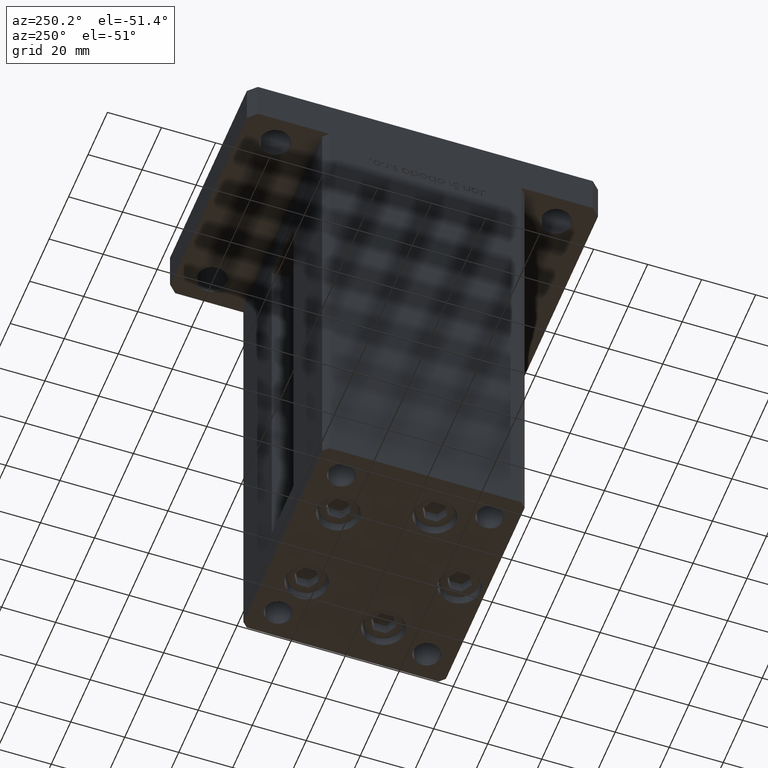
[diagram: clean part render]
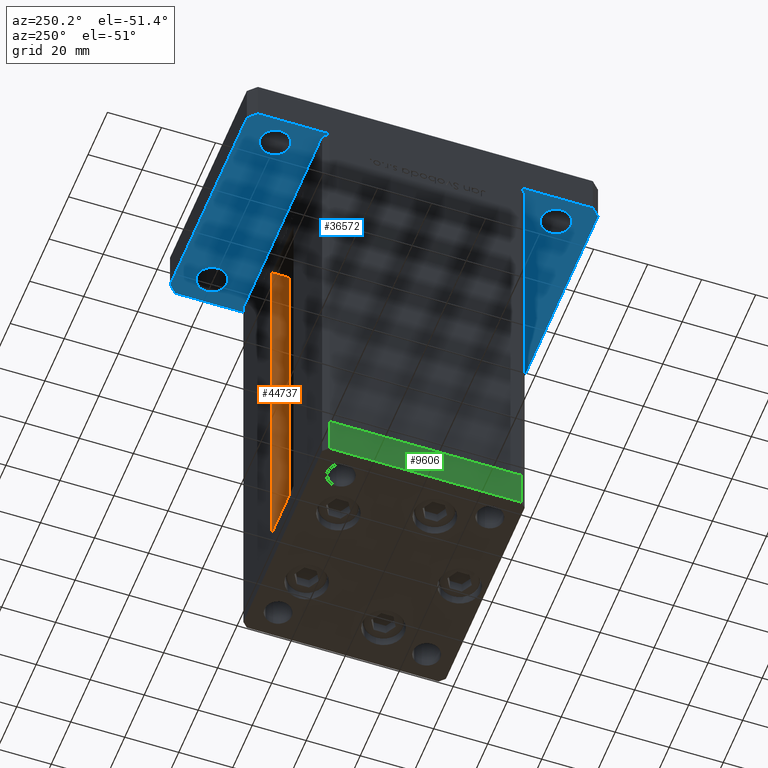
[diagram: same view with three faces highlighted in distinct colors, each labeled with its STEP entity id]
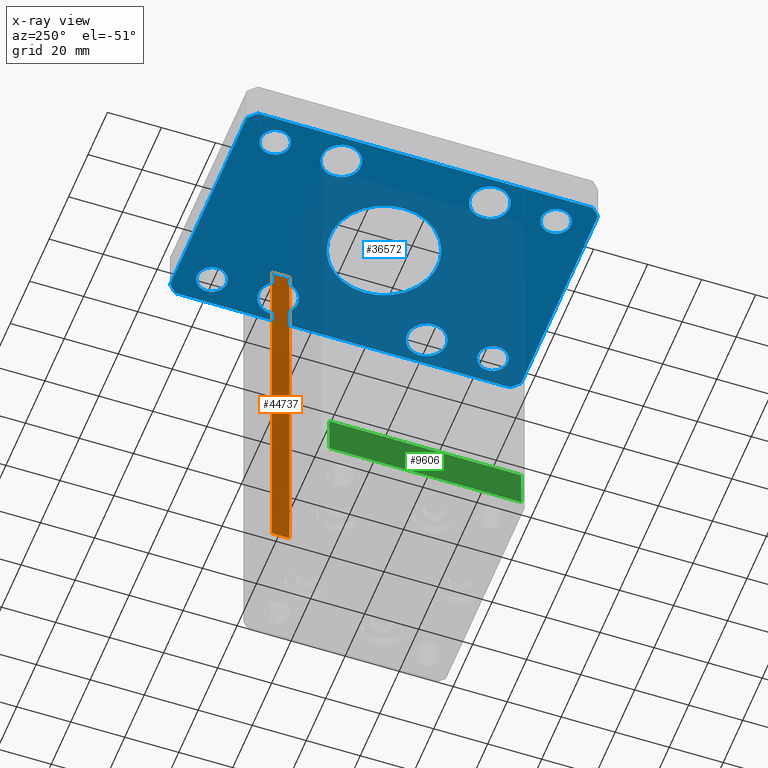
[diagram: x-ray of the same camera — body ghosted, the three highlighted faces saturated]
A machine part, auxiliary view with three faces highlighted in distinct colors.
The next image is the same camera in x-ray (body ghosted, the three faces saturated) — at least one of them is partly hidden behind the body in this view.
Their STEP definitions:

[orange] entity #44737 — the highlighted planar face has unit normal (1, 0, 0).
#1954 = CARTESIAN_POINT ( 'NONE',  ( 11.25000000000000000, 30.99999999999999289, 0.000000000000000000 ) ) ;
#2154 = CARTESIAN_POINT ( 'NONE',  ( 11.25000000000000000, 30.99999999999999289, 145.5000000000000000 ) ) ;
#4372 = DIRECTION ( 'NONE',  ( 1.000000000000000000, -0.000000000000000000, 0.000000000000000000 ) ) ;
#8063 = CARTESIAN_POINT ( 'NONE',  ( 11.25000000000000000, 0.000000000000000000, 145.5000000000000000 ) ) ;
#9899 = LINE ( 'NONE', #30776, #43610 ) ;
#12268 = VERTEX_POINT ( 'NONE', #46587 ) ;
#12788 = DIRECTION ( 'NONE',  ( 0.000000000000000000, 0.000000000000000000, -1.000000000000000000 ) ) ;
#13801 = ORIENTED_EDGE ( 'NONE', *, *, #40222, .F. ) ;
#15732 = AXIS2_PLACEMENT_3D ( 'NONE', #33125, #4372, #12788 ) ;
#16593 = PLANE ( 'NONE',  #15732 ) ;
#18782 = DIRECTION ( 'NONE',  ( 0.000000000000000000, 1.000000000000000000, 0.000000000000000000 ) ) ;
#24416 = CARTESIAN_POINT ( 'NONE',  ( 11.25000000000000000, 37.50000000000000000, 0.000000000000000000 ) ) ;
#24466 = VECTOR ( 'NONE', #18782, 1000.000000000000000 ) ;
#24974 = LINE ( 'NONE', #36885, #26901 ) ;
#26346 = CARTESIAN_POINT ( 'NONE',  ( 11.24999999999999289, 37.50000000000000000, 145.5000000000000000 ) ) ;
#26901 = VECTOR ( 'NONE', #40425, 1000.000000000000000 ) ;
#29075 = ORIENTED_EDGE ( 'NONE', *, *, #48694, .F. ) ;
#30776 = CARTESIAN_POINT ( 'NONE',  ( 11.25000000000000000, 30.99999999999999289, 0.000000000000000000 ) ) ;
#33125 = CARTESIAN_POINT ( 'NONE',  ( 11.25000000000000000, 30.99999999999999289, 0.000000000000000000 ) ) ;
#36885 = CARTESIAN_POINT ( 'NONE',  ( 11.25000000000000000, 37.50000000000000000, 0.000000000000000000 ) ) ;
#37388 = VECTOR ( 'NONE', #42220, 1000.000000000000000 ) ;
#37577 = EDGE_LOOP ( 'NONE', ( #13801, #29075, #47193, #45777 ) ) ;
#38214 = VERTEX_POINT ( 'NONE', #24416 ) ;
#40222 = EDGE_CURVE ( 'NONE', #38214, #49813, #24974, .T. ) ;
#40425 = DIRECTION ( 'NONE',  ( -0.000000000000000000, -0.000000000000000000, 1.000000000000000000 ) ) ;
#41688 = LINE ( 'NONE', #8063, #37388 ) ;
#42220 = DIRECTION ( 'NONE',  ( -0.000000000000000000, -1.000000000000000000, 0.000000000000000000 ) ) ;
#43610 = VECTOR ( 'NONE', #51386, 1000.000000000000000 ) ;
#44737 = ADVANCED_FACE ( 'NONE', ( #49667 ), #16593, .F. ) ;
#45777 = ORIENTED_EDGE ( 'NONE', *, *, #46476, .F. ) ;
#46476 = EDGE_CURVE ( 'NONE', #49813, #53653, #41688, .T. ) ;
#46587 = CARTESIAN_POINT ( 'NONE',  ( 11.25000000000000000, 30.99999999999999289, 0.000000000000000000 ) ) ;
#47193 = ORIENTED_EDGE ( 'NONE', *, *, #52019, .T. ) ;
#47530 = LINE ( 'NONE', #1954, #24466 ) ;
#48694 = EDGE_CURVE ( 'NONE', #12268, #38214, #47530, .T. ) ;
#49667 = FACE_OUTER_BOUND ( 'NONE', #37577, .T. ) ;
#49813 = VERTEX_POINT ( 'NONE', #26346 ) ;
#51386 = DIRECTION ( 'NONE',  ( -0.000000000000000000, -0.000000000000000000, 1.000000000000000000 ) ) ;
#52019 = EDGE_CURVE ( 'NONE', #12268, #53653, #9899, .T. ) ;
#53653 = VERTEX_POINT ( 'NONE', #2154 ) ;

[blue] entity #36572 — the highlighted planar face has unit normal (0, 0, 1).
#219 = ORIENTED_EDGE ( 'NONE', *, *, #312, .T. ) ;
#312 = EDGE_CURVE ( 'NONE', #40856, #11086, #24835, .T. ) ;
#542 = AXIS2_PLACEMENT_3D ( 'NONE', #34305, #25660, #50592 ) ;
#764 = EDGE_LOOP ( 'NONE', ( #53580, #25462 ) ) ;
#787 = FACE_BOUND ( 'NONE', #29230, .T. ) ;
#819 = ORIENTED_EDGE ( 'NONE', *, *, #41137, .T. ) ;
#1007 = EDGE_CURVE ( 'NONE', #15247, #19618, #23944, .T. ) ;
#1058 = FACE_BOUND ( 'NONE', #764, .T. ) ;
#1561 = ORIENTED_EDGE ( 'NONE', *, *, #32559, .T. ) ;
#1662 = VECTOR ( 'NONE', #43072, 1000.000000000000000 ) ;
#1773 = ORIENTED_EDGE ( 'NONE', *, *, #31211, .F. ) ;
#2113 = CARTESIAN_POINT ( 'NONE',  ( -39.75000000000000711, 27.50000000000000000, 0.000000000000000000 ) ) ;
#2453 = DIRECTION ( 'NONE',  ( 2.238352872228137677E-16, -1.000000000000000000, 0.000000000000000000 ) ) ;
#2909 = CARTESIAN_POINT ( 'NONE',  ( 42.50000000000000000, -61.99999999999988631, 0.000000000000000000 ) ) ;
#3126 = DIRECTION ( 'NONE',  ( 0.000000000000000000, 0.000000000000000000, 1.000000000000000000 ) ) ;
#3305 = DIRECTION ( 'NONE',  ( 0.7071067811865459074, 0.7071067811865491270, 0.000000000000000000 ) ) ;
#3971 = AXIS2_PLACEMENT_3D ( 'NONE', #24731, #40984, #16849 ) ;
#4486 = CARTESIAN_POINT ( 'NONE',  ( 32.50000000000000000, 27.50000000000000000, 0.000000000000000000 ) ) ;
#4699 = VERTEX_POINT ( 'NONE', #33949 ) ;
#4833 = AXIS2_PLACEMENT_3D ( 'NONE', #35644, #27539, #44064 ) ;
#5238 = ORIENTED_EDGE ( 'NONE', *, *, #22057, .T. ) ;
#5286 = EDGE_LOOP ( 'NONE', ( #32505, #219 ) ) ;
#5290 = DIRECTION ( 'NONE',  ( 1.000000000000000000, 0.000000000000000000, 0.000000000000000000 ) ) ;
#5829 = EDGE_LOOP ( 'NONE', ( #24836, #36950 ) ) ;
#6262 = DIRECTION ( 'NONE',  ( 1.000000000000000000, 0.000000000000000000, 0.000000000000000000 ) ) ;
#6844 = ORIENTED_EDGE ( 'NONE', *, *, #19325, .F. ) ;
#7013 = ORIENTED_EDGE ( 'NONE', *, *, #37020, .T. ) ;
#7278 = CARTESIAN_POINT ( 'NONE',  ( -25.25000000000000711, 27.50000000000000000, 0.000000000000000000 ) ) ;
#7324 = DIRECTION ( 'NONE',  ( -1.000000000000000000, 0.000000000000000000, 0.000000000000000000 ) ) ;
#7746 = EDGE_CURVE ( 'NONE', #45191, #22197, #26809, .T. ) ;
#7917 = LINE ( 'NONE', #12518, #44700 ) ;
#8116 = DIRECTION ( 'NONE',  ( 0.000000000000000000, 0.000000000000000000, 1.000000000000000000 ) ) ;
#8129 = DIRECTION ( 'NONE',  ( 0.000000000000000000, 0.000000000000000000, -1.000000000000000000 ) ) ;
#8995 = CIRCLE ( 'NONE', #39286, 7.249999999999999112 ) ;
#9198 = CARTESIAN_POINT ( 'NONE',  ( 32.50000000000000000, 27.50000000000000000, 0.000000000000000000 ) ) ;
#9286 = DIRECTION ( 'NONE',  ( 0.000000000000000000, 0.000000000000000000, 1.000000000000000000 ) ) ;
#9479 = CARTESIAN_POINT ( 'NONE',  ( 27.00000000000001421, 51.99999999999999289, 0.000000000000000000 ) ) ;
#10696 = EDGE_CURVE ( 'NONE', #42215, #45954, #50233, .T. ) ;
#10871 = LINE ( 'NONE', #15214, #51205 ) ;
#10880 = VERTEX_POINT ( 'NONE', #36065 ) ;
#11086 = VERTEX_POINT ( 'NONE', #39821 ) ;
#11143 = CIRCLE ( 'NONE', #41460, 7.249999999999999112 ) ;
#11180 = AXIS2_PLACEMENT_3D ( 'NONE', #35367, #38670, #30530 ) ;
#11287 = CIRCLE ( 'NONE', #41607, 20.00000000000000000 ) ;
#11438 = EDGE_CURVE ( 'NONE', #11086, #40856, #11143, .T. ) ;
#11950 = DIRECTION ( 'NONE',  ( 1.000000000000000000, 0.000000000000000000, 0.000000000000000000 ) ) ;
#11958 = VERTEX_POINT ( 'NONE', #49631 ) ;
#12195 = DIRECTION ( 'NONE',  ( 1.000000000000000000, 0.000000000000000000, 0.000000000000000000 ) ) ;
#12518 = CARTESIAN_POINT ( 'NONE',  ( 39.50000000000001421, -64.99999999999988631, 0.000000000000000000 ) ) ;
#12811 = VERTEX_POINT ( 'NONE', #15992 ) ;
#12999 = FACE_BOUND ( 'NONE', #17275, .T. ) ;
#13004 = AXIS2_PLACEMENT_3D ( 'NONE', #46438, #9286, #25837 ) ;
#13387 = EDGE_LOOP ( 'NONE', ( #5238, #43871 ) ) ;
#13703 = DIRECTION ( 'NONE',  ( 1.000000000000000000, 1.405345600791337191E-15, 0.000000000000000000 ) ) ;
#14105 = EDGE_CURVE ( 'NONE', #20717, #37699, #8995, .T. ) ;
#14184 = AXIS2_PLACEMENT_3D ( 'NONE', #48787, #40912, #15438 ) ;
#14323 = DIRECTION ( 'NONE',  ( 1.000000000000000000, 0.000000000000000000, 0.000000000000000000 ) ) ;
#14452 = VERTEX_POINT ( 'NONE', #14507 ) ;
#14456 = CIRCLE ( 'NONE', #31812, 7.249999999999999112 ) ;
#14507 = CARTESIAN_POINT ( 'NONE',  ( 39.50000000000002842, 65.00000000000002842, 0.000000000000000000 ) ) ;
#15191 = CARTESIAN_POINT ( 'NONE',  ( 0.000000000000000000, 0.000000000000000000, 0.000000000000000000 ) ) ;
#15214 = CARTESIAN_POINT ( 'NONE',  ( 39.50000000000002842, 65.00000000000002842, 0.000000000000000000 ) ) ;
#15218 = CARTESIAN_POINT ( 'NONE',  ( -32.50000000000000711, 27.50000000000000000, 0.000000000000000000 ) ) ;
#15219 = DIRECTION ( 'NONE',  ( 0.000000000000000000, 0.000000000000000000, 1.000000000000000000 ) ) ;
#15247 = VERTEX_POINT ( 'NONE', #50093 ) ;
#15438 = DIRECTION ( 'NONE',  ( 1.000000000000000000, 0.000000000000000000, 0.000000000000000000 ) ) ;
#15481 = CARTESIAN_POINT ( 'NONE',  ( -42.50000000000002132, 62.00000000000000711, 0.000000000000000000 ) ) ;
#15992 = CARTESIAN_POINT ( 'NONE',  ( -37.99999999999997868, -52.00000000000000711, 0.000000000000000000 ) ) ;
#16135 = EDGE_CURVE ( 'NONE', #10880, #29845, #51764, .T. ) ;
#16795 = FACE_OUTER_BOUND ( 'NONE', #50938, .T. ) ;
#16849 = DIRECTION ( 'NONE',  ( 1.000000000000000000, 0.000000000000000000, 0.000000000000000000 ) ) ;
#17251 = DIRECTION ( 'NONE',  ( 0.000000000000000000, 0.000000000000000000, 1.000000000000000000 ) ) ;
#17275 = EDGE_LOOP ( 'NONE', ( #17835, #819 ) ) ;
#17438 = EDGE_CURVE ( 'NONE', #45954, #48967, #46798, .T. ) ;
#17784 = VECTOR ( 'NONE', #13703, 1000.000000000000000 ) ;
#17835 = ORIENTED_EDGE ( 'NONE', *, *, #46167, .T. ) ;
#18091 = CARTESIAN_POINT ( 'NONE',  ( -42.49999999999999289, -62.00000000000001421, 0.000000000000000000 ) ) ;
#18604 = DIRECTION ( 'NONE',  ( 0.000000000000000000, 0.000000000000000000, 1.000000000000000000 ) ) ;
#18900 = ORIENTED_EDGE ( 'NONE', *, *, #39165, .T. ) ;
#19125 = DIRECTION ( 'NONE',  ( 1.000000000000000000, 0.000000000000000000, 0.000000000000000000 ) ) ;
#19325 = EDGE_CURVE ( 'NONE', #28133, #26829, #28241, .T. ) ;
#19395 = DIRECTION ( 'NONE',  ( 0.000000000000000000, 0.000000000000000000, 1.000000000000000000 ) ) ;
#19551 = LINE ( 'NONE', #15481, #37788 ) ;
#19618 = VERTEX_POINT ( 'NONE', #9479 ) ;
#20462 = VERTEX_POINT ( 'NONE', #43950 ) ;
#20717 = VERTEX_POINT ( 'NONE', #32758 ) ;
#20793 = CARTESIAN_POINT ( 'NONE',  ( 32.49999999999997868, -52.00000000000000711, 0.000000000000000000 ) ) ;
#20956 = CIRCLE ( 'NONE', #38294, 7.249999999999999112 ) ;
#21229 = VECTOR ( 'NONE', #40097, 1000.000000000000000 ) ;
#21586 = VERTEX_POINT ( 'NONE', #41173 ) ;
#22057 = EDGE_CURVE ( 'NONE', #4699, #20462, #45536, .T. ) ;
#22159 = AXIS2_PLACEMENT_3D ( 'NONE', #20793, #37315, #34826 ) ;
#22197 = VERTEX_POINT ( 'NONE', #31297 ) ;
#22520 = EDGE_CURVE ( 'NONE', #11958, #12811, #24744, .T. ) ;
#22688 = ORIENTED_EDGE ( 'NONE', *, *, #40917, .F. ) ;
#22784 = DIRECTION ( 'NONE',  ( -0.7071067811865417996, 0.7071067811865532349, 0.000000000000000000 ) ) ;
#22999 = CARTESIAN_POINT ( 'NONE',  ( 42.50000000000000000, -61.99999999999988631, 0.000000000000000000 ) ) ;
#23032 = CARTESIAN_POINT ( 'NONE',  ( -39.50000000000003553, 65.00000000000000000, 0.000000000000000000 ) ) ;
#23325 = CARTESIAN_POINT ( 'NONE',  ( 42.50000000000000000, 62.00000000000000711, 0.000000000000000000 ) ) ;
#23372 = DIRECTION ( 'NONE',  ( 0.000000000000000000, 0.000000000000000000, 1.000000000000000000 ) ) ;
#23684 = EDGE_CURVE ( 'NONE', #38560, #27779, #31698, .T. ) ;
#23733 = CIRCLE ( 'NONE', #14184, 5.499999999999994671 ) ;
#23944 = CIRCLE ( 'NONE', #542, 5.499999999999991118 ) ;
#24731 = CARTESIAN_POINT ( 'NONE',  ( -32.50000000000000711, 27.50000000000000000, 0.000000000000000000 ) ) ;
#24744 = CIRCLE ( 'NONE', #39430, 5.499999999999994671 ) ;
#24835 = CIRCLE ( 'NONE', #36930, 7.249999999999999112 ) ;
#24836 = ORIENTED_EDGE ( 'NONE', *, *, #14105, .T. ) ;
#24906 = EDGE_CURVE ( 'NONE', #29845, #42215, #19551, .T. ) ;
#25462 = ORIENTED_EDGE ( 'NONE', *, *, #27370, .T. ) ;
#25660 = DIRECTION ( 'NONE',  ( 0.000000000000000000, 0.000000000000000000, 1.000000000000000000 ) ) ;
#25755 = DIRECTION ( 'NONE',  ( 1.000000000000000000, 0.000000000000000000, 0.000000000000000000 ) ) ;
#25756 = FACE_BOUND ( 'NONE', #36485, .T. ) ;
#25837 = DIRECTION ( 'NONE',  ( 1.000000000000000000, 0.000000000000000000, 0.000000000000000000 ) ) ;
#25897 = CARTESIAN_POINT ( 'NONE',  ( 39.75000000000000000, -27.50000000000000000, 0.000000000000000000 ) ) ;
#26374 = EDGE_CURVE ( 'NONE', #37699, #20717, #45651, .T. ) ;
#26809 = LINE ( 'NONE', #2909, #1662 ) ;
#26829 = VERTEX_POINT ( 'NONE', #40822 ) ;
#27054 = ORIENTED_EDGE ( 'NONE', *, *, #36138, .F. ) ;
#27370 = EDGE_CURVE ( 'NONE', #27779, #38560, #14456, .T. ) ;
#27539 = DIRECTION ( 'NONE',  ( 0.000000000000000000, 0.000000000000000000, -1.000000000000000000 ) ) ;
#27607 = ORIENTED_EDGE ( 'NONE', *, *, #16135, .F. ) ;
#27767 = AXIS2_PLACEMENT_3D ( 'NONE', #40537, #19395, #19125 ) ;
#27779 = VERTEX_POINT ( 'NONE', #7278 ) ;
#27954 = DIRECTION ( 'NONE',  ( 0.000000000000000000, 0.000000000000000000, 1.000000000000000000 ) ) ;
#28133 = VERTEX_POINT ( 'NONE', #46459 ) ;
#28241 = CIRCLE ( 'NONE', #4833, 20.00000000000000000 ) ;
#28578 = CIRCLE ( 'NONE', #13004, 5.499999999999991118 ) ;
#29230 = EDGE_LOOP ( 'NONE', ( #30783, #32733 ) ) ;
#29336 = DIRECTION ( 'NONE',  ( 1.000000000000000000, 0.000000000000000000, 0.000000000000000000 ) ) ;
#29845 = VERTEX_POINT ( 'NONE', #52646 ) ;
#30087 = FACE_BOUND ( 'NONE', #13387, .T. ) ;
#30530 = DIRECTION ( 'NONE',  ( 1.000000000000000000, 0.000000000000000000, 0.000000000000000000 ) ) ;
#30783 = ORIENTED_EDGE ( 'NONE', *, *, #52859, .T. ) ;
#31211 = EDGE_CURVE ( 'NONE', #22197, #14452, #47979, .T. ) ;
#31265 = CARTESIAN_POINT ( 'NONE',  ( 39.75000000000000000, 27.50000000000000000, 0.000000000000000000 ) ) ;
#31297 = CARTESIAN_POINT ( 'NONE',  ( 42.50000000000000000, 62.00000000000000711, 0.000000000000000000 ) ) ;
#31698 = CIRCLE ( 'NONE', #3971, 7.249999999999999112 ) ;
#31812 = AXIS2_PLACEMENT_3D ( 'NONE', #15218, #23372, #6262 ) ;
#31891 = CARTESIAN_POINT ( 'NONE',  ( -39.75000000000000000, -27.50000000000000000, 0.000000000000000000 ) ) ;
#32115 = CIRCLE ( 'NONE', #39044, 5.499999999999998224 ) ;
#32290 = VERTEX_POINT ( 'NONE', #33863 ) ;
#32505 = ORIENTED_EDGE ( 'NONE', *, *, #11438, .T. ) ;
#32559 = EDGE_CURVE ( 'NONE', #32290, #52355, #47566, .T. ) ;
#32733 = ORIENTED_EDGE ( 'NONE', *, *, #22520, .T. ) ;
#32758 = CARTESIAN_POINT ( 'NONE',  ( 25.25000000000000000, 27.50000000000000000, 0.000000000000000000 ) ) ;
#32920 = ORIENTED_EDGE ( 'NONE', *, *, #1007, .T. ) ;
#33863 = CARTESIAN_POINT ( 'NONE',  ( -38.00000000000000000, 52.00000000000000000, 0.000000000000000000 ) ) ;
#33949 = CARTESIAN_POINT ( 'NONE',  ( 26.99999999999998579, -52.00000000000000711, 0.000000000000000000 ) ) ;
#33950 = DIRECTION ( 'NONE',  ( 0.7071067811865483499, -0.7071067811865466846, 0.000000000000000000 ) ) ;
#34305 = CARTESIAN_POINT ( 'NONE',  ( 32.50000000000000000, 51.99999999999999289, 0.000000000000000000 ) ) ;
#34310 = CARTESIAN_POINT ( 'NONE',  ( -39.50000000000000000, -65.00000000000000000, 0.000000000000000000 ) ) ;
#34558 = ORIENTED_EDGE ( 'NONE', *, *, #10696, .F. ) ;
#34700 = CIRCLE ( 'NONE', #52006, 7.249999999999999112 ) ;
#34826 = DIRECTION ( 'NONE',  ( 1.000000000000000000, 0.000000000000000000, 0.000000000000000000 ) ) ;
#35025 = CARTESIAN_POINT ( 'NONE',  ( -27.00000000000000711, 52.00000000000000000, 0.000000000000000000 ) ) ;
#35367 = CARTESIAN_POINT ( 'NONE',  ( -32.50000000000000000, 52.00000000000000000, 0.000000000000000000 ) ) ;
#35644 = CARTESIAN_POINT ( 'NONE',  ( 0.000000000000000000, 0.000000000000000000, 0.000000000000000000 ) ) ;
#36065 = CARTESIAN_POINT ( 'NONE',  ( -39.50000000000003553, 65.00000000000000000, 0.000000000000000000 ) ) ;
#36138 = EDGE_CURVE ( 'NONE', #48967, #45191, #7917, .T. ) ;
#36485 = EDGE_LOOP ( 'NONE', ( #1561, #7013 ) ) ;
#36572 = ADVANCED_FACE ( 'NONE', ( #42551, #16795, #787, #37405, #25756, #12999, #46887, #50961, #1058, #30087 ), #45827, .F. ) ;
#36930 = AXIS2_PLACEMENT_3D ( 'NONE', #52363, #15219, #11950 ) ;
#36950 = ORIENTED_EDGE ( 'NONE', *, *, #26374, .T. ) ;
#37020 = EDGE_CURVE ( 'NONE', #52355, #32290, #52009, .T. ) ;
#37183 = CARTESIAN_POINT ( 'NONE',  ( -32.49999999999997868, -52.00000000000000711, 0.000000000000000000 ) ) ;
#37315 = DIRECTION ( 'NONE',  ( 0.000000000000000000, 0.000000000000000000, 1.000000000000000000 ) ) ;
#37405 = FACE_BOUND ( 'NONE', #44172, .T. ) ;
#37699 = VERTEX_POINT ( 'NONE', #31265 ) ;
#37788 = VECTOR ( 'NONE', #2453, 1000.000000000000000 ) ;
#37950 = DIRECTION ( 'NONE',  ( 1.000000000000000000, 0.000000000000000000, -0.000000000000000000 ) ) ;
#38276 = CARTESIAN_POINT ( 'NONE',  ( 39.50000000000001421, -64.99999999999988631, 0.000000000000000000 ) ) ;
#38294 = AXIS2_PLACEMENT_3D ( 'NONE', #48276, #27954, #12195 ) ;
#38560 = VERTEX_POINT ( 'NONE', #2113 ) ;
#38670 = DIRECTION ( 'NONE',  ( 0.000000000000000000, 0.000000000000000000, 1.000000000000000000 ) ) ;
#38957 = CARTESIAN_POINT ( 'NONE',  ( 32.49999999999997868, -52.00000000000000711, 0.000000000000000000 ) ) ;
#39044 = AXIS2_PLACEMENT_3D ( 'NONE', #38957, #18604, #43284 ) ;
#39165 = EDGE_CURVE ( 'NONE', #19618, #15247, #28578, .T. ) ;
#39286 = AXIS2_PLACEMENT_3D ( 'NONE', #9198, #8116, #25755 ) ;
#39430 = AXIS2_PLACEMENT_3D ( 'NONE', #37183, #49392, #29336 ) ;
#39544 = CARTESIAN_POINT ( 'NONE',  ( -32.50000000000000000, -27.50000000000000000, 0.000000000000000000 ) ) ;
#39821 = CARTESIAN_POINT ( 'NONE',  ( 25.25000000000000000, -27.50000000000000000, 0.000000000000000000 ) ) ;
#39959 = VERTEX_POINT ( 'NONE', #31891 ) ;
#40097 = DIRECTION ( 'NONE',  ( -0.7071067811865466846, -0.7071067811865483499, 0.000000000000000000 ) ) ;
#40537 = CARTESIAN_POINT ( 'NONE',  ( -32.50000000000000000, 52.00000000000000000, 0.000000000000000000 ) ) ;
#40569 = VECTOR ( 'NONE', #33950, 1000.000000000000000 ) ;
#40822 = CARTESIAN_POINT ( 'NONE',  ( -20.00000000000000000, 0.000000000000000000, 0.000000000000000000 ) ) ;
#40856 = VERTEX_POINT ( 'NONE', #25897 ) ;
#40912 = DIRECTION ( 'NONE',  ( 0.000000000000000000, 0.000000000000000000, 1.000000000000000000 ) ) ;
#40917 = EDGE_CURVE ( 'NONE', #26829, #28133, #11287, .T. ) ;
#40984 = DIRECTION ( 'NONE',  ( 0.000000000000000000, 0.000000000000000000, 1.000000000000000000 ) ) ;
#41081 = CARTESIAN_POINT ( 'NONE',  ( 32.50000000000000000, -27.50000000000000000, 0.000000000000000000 ) ) ;
#41137 = EDGE_CURVE ( 'NONE', #21586, #39959, #34700, .T. ) ;
#41173 = CARTESIAN_POINT ( 'NONE',  ( -25.25000000000000000, -27.50000000000000000, 0.000000000000000000 ) ) ;
#41460 = AXIS2_PLACEMENT_3D ( 'NONE', #41081, #3126, #48960 ) ;
#41607 = AXIS2_PLACEMENT_3D ( 'NONE', #15191, #8129, #7324 ) ;
#42215 = VERTEX_POINT ( 'NONE', #18091 ) ;
#42281 = DIRECTION ( 'NONE',  ( 0.000000000000000000, 0.000000000000000000, 1.000000000000000000 ) ) ;
#42298 = EDGE_CURVE ( 'NONE', #20462, #4699, #32115, .T. ) ;
#42551 = FACE_BOUND ( 'NONE', #43726, .T. ) ;
#42950 = EDGE_CURVE ( 'NONE', #14452, #10880, #10871, .T. ) ;
#43072 = DIRECTION ( 'NONE',  ( 0.000000000000000000, 1.000000000000000000, 0.000000000000000000 ) ) ;
#43284 = DIRECTION ( 'NONE',  ( 1.000000000000000000, 0.000000000000000000, 0.000000000000000000 ) ) ;
#43726 = EDGE_LOOP ( 'NONE', ( #22688, #6844 ) ) ;
#43871 = ORIENTED_EDGE ( 'NONE', *, *, #42298, .T. ) ;
#43874 = CARTESIAN_POINT ( 'NONE',  ( -39.50000000000000000, -65.00000000000000000, 0.000000000000000000 ) ) ;
#43950 = CARTESIAN_POINT ( 'NONE',  ( 37.99999999999997868, -52.00000000000000711, 0.000000000000000000 ) ) ;
#44064 = DIRECTION ( 'NONE',  ( -1.000000000000000000, 0.000000000000000000, 0.000000000000000000 ) ) ;
#44172 = EDGE_LOOP ( 'NONE', ( #18900, #32920 ) ) ;
#44316 = ORIENTED_EDGE ( 'NONE', *, *, #17438, .F. ) ;
#44700 = VECTOR ( 'NONE', #3305, 1000.000000000000114 ) ;
#45191 = VERTEX_POINT ( 'NONE', #22999 ) ;
#45536 = CIRCLE ( 'NONE', #22159, 5.499999999999998224 ) ;
#45651 = CIRCLE ( 'NONE', #52558, 7.249999999999999112 ) ;
#45827 = PLANE ( 'NONE',  #50171 ) ;
#45954 = VERTEX_POINT ( 'NONE', #43874 ) ;
#46167 = EDGE_CURVE ( 'NONE', #39959, #21586, #20956, .T. ) ;
#46438 = CARTESIAN_POINT ( 'NONE',  ( 32.50000000000000000, 51.99999999999999289, 0.000000000000000000 ) ) ;
#46459 = CARTESIAN_POINT ( 'NONE',  ( 20.00000000000000000, 2.449293598294706513E-15, 0.000000000000000000 ) ) ;
#46798 = LINE ( 'NONE', #34310, #17784 ) ;
#46887 = FACE_BOUND ( 'NONE', #5286, .T. ) ;
#47566 = CIRCLE ( 'NONE', #11180, 5.499999999999994671 ) ;
#47979 = LINE ( 'NONE', #23325, #48375 ) ;
#48276 = CARTESIAN_POINT ( 'NONE',  ( -32.50000000000000000, -27.50000000000000000, 0.000000000000000000 ) ) ;
#48375 = VECTOR ( 'NONE', #22784, 1000.000000000000000 ) ;
#48787 = CARTESIAN_POINT ( 'NONE',  ( -32.49999999999997868, -52.00000000000000711, 0.000000000000000000 ) ) ;
#48960 = DIRECTION ( 'NONE',  ( 1.000000000000000000, 0.000000000000000000, 0.000000000000000000 ) ) ;
#48967 = VERTEX_POINT ( 'NONE', #38276 ) ;
#49316 = ORIENTED_EDGE ( 'NONE', *, *, #24906, .F. ) ;
#49392 = DIRECTION ( 'NONE',  ( 0.000000000000000000, 0.000000000000000000, 1.000000000000000000 ) ) ;
#49631 = CARTESIAN_POINT ( 'NONE',  ( -26.99999999999998579, -52.00000000000000711, 0.000000000000000000 ) ) ;
#49805 = ORIENTED_EDGE ( 'NONE', *, *, #7746, .F. ) ;
#49873 = CARTESIAN_POINT ( 'NONE',  ( 0.000000000000000000, 0.000000000000000000, 0.000000000000000000 ) ) ;
#50093 = CARTESIAN_POINT ( 'NONE',  ( 37.99999999999999289, 51.99999999999999289, 0.000000000000000000 ) ) ;
#50171 = AXIS2_PLACEMENT_3D ( 'NONE', #49873, #42281, #37950 ) ;
#50233 = LINE ( 'NONE', #51296, #40569 ) ;
#50309 = ORIENTED_EDGE ( 'NONE', *, *, #42950, .F. ) ;
#50592 = DIRECTION ( 'NONE',  ( 1.000000000000000000, 0.000000000000000000, 0.000000000000000000 ) ) ;
#50938 = EDGE_LOOP ( 'NONE', ( #44316, #34558, #49316, #27607, #50309, #1773, #49805, #27054 ) ) ;
#50961 = FACE_BOUND ( 'NONE', #5829, .T. ) ;
#51205 = VECTOR ( 'NONE', #52904, 1000.000000000000000 ) ;
#51296 = CARTESIAN_POINT ( 'NONE',  ( -42.49999999999999289, -62.00000000000001421, 0.000000000000000000 ) ) ;
#51485 = DIRECTION ( 'NONE',  ( 0.000000000000000000, 0.000000000000000000, 1.000000000000000000 ) ) ;
#51764 = LINE ( 'NONE', #23032, #21229 ) ;
#52006 = AXIS2_PLACEMENT_3D ( 'NONE', #39544, #51485, #14323 ) ;
#52009 = CIRCLE ( 'NONE', #27767, 5.499999999999994671 ) ;
#52355 = VERTEX_POINT ( 'NONE', #35025 ) ;
#52363 = CARTESIAN_POINT ( 'NONE',  ( 32.50000000000000000, -27.50000000000000000, 0.000000000000000000 ) ) ;
#52558 = AXIS2_PLACEMENT_3D ( 'NONE', #4486, #17251, #5290 ) ;
#52646 = CARTESIAN_POINT ( 'NONE',  ( -42.50000000000002132, 62.00000000000000711, 0.000000000000000000 ) ) ;
#52859 = EDGE_CURVE ( 'NONE', #12811, #11958, #23733, .T. ) ;
#52904 = DIRECTION ( 'NONE',  ( -1.000000000000000000, -3.513364001978340512E-16, 0.000000000000000000 ) ) ;
#53580 = ORIENTED_EDGE ( 'NONE', *, *, #23684, .T. ) ;

[green] entity #9606 — the highlighted planar face has unit normal (-1, 0, 0).
#3783 = LINE ( 'NONE', #20351, #25930 ) ;
#4252 = CARTESIAN_POINT ( 'NONE',  ( 42.49999999999992895, 35.50000000000000000, -15.00000000000000000 ) ) ;
#4272 = LINE ( 'NONE', #41971, #17383 ) ;
#5287 = CARTESIAN_POINT ( 'NONE',  ( 42.49999999999992895, 35.50000000000000000, 0.000000000000000000 ) ) ;
#6658 = DIRECTION ( 'NONE',  ( 1.000000000000000000, 1.172770800660376741E-15, -0.000000000000000000 ) ) ;
#7147 = ORIENTED_EDGE ( 'NONE', *, *, #41613, .F. ) ;
#7203 = FACE_OUTER_BOUND ( 'NONE', #42379, .T. ) ;
#7745 = AXIS2_PLACEMENT_3D ( 'NONE', #27293, #6658, #36214 ) ;
#8435 = EDGE_CURVE ( 'NONE', #51624, #8525, #3783, .T. ) ;
#8525 = VERTEX_POINT ( 'NONE', #46639 ) ;
#8890 = ORIENTED_EDGE ( 'NONE', *, *, #8435, .T. ) ;
#9606 = ADVANCED_FACE ( 'NONE', ( #7203 ), #19690, .T. ) ;
#12688 = DIRECTION ( 'NONE',  ( 0.000000000000000000, 0.000000000000000000, 1.000000000000000000 ) ) ;
#15690 = ORIENTED_EDGE ( 'NONE', *, *, #40753, .F. ) ;
#16947 = LINE ( 'NONE', #25370, #33864 ) ;
#17018 = DIRECTION ( 'NONE',  ( 0.000000000000000000, 0.000000000000000000, 1.000000000000000000 ) ) ;
#17383 = VECTOR ( 'NONE', #12688, 1000.000000000000000 ) ;
#19690 = PLANE ( 'NONE',  #7745 ) ;
#20351 = CARTESIAN_POINT ( 'NONE',  ( 42.50000000000000711, -35.50000000000000000, -15.00000000000000000 ) ) ;
#20846 = CARTESIAN_POINT ( 'NONE',  ( 42.50000000000000711, -35.50000000000000000, 0.000000000000000000 ) ) ;
#25370 = CARTESIAN_POINT ( 'NONE',  ( 42.50000000000000711, -35.50000000000000000, 0.000000000000000000 ) ) ;
#25798 = CARTESIAN_POINT ( 'NONE',  ( 42.50000000000000711, -35.50000000000000000, -15.00000000000000000 ) ) ;
#25930 = VECTOR ( 'NONE', #45295, 1000.000000000000000 ) ;
#27293 = CARTESIAN_POINT ( 'NONE',  ( 42.50000000000000711, -35.50000000000000000, -15.00000000000000000 ) ) ;
#28638 = DIRECTION ( 'NONE',  ( -1.172770800660376741E-15, 1.000000000000000000, 0.000000000000000000 ) ) ;
#29448 = VERTEX_POINT ( 'NONE', #5287 ) ;
#33864 = VECTOR ( 'NONE', #28638, 1000.000000000000000 ) ;
#36214 = DIRECTION ( 'NONE',  ( -1.172770800660376741E-15, 1.000000000000000000, 0.000000000000000000 ) ) ;
#40753 = EDGE_CURVE ( 'NONE', #51624, #43325, #4272, .T. ) ;
#41305 = EDGE_CURVE ( 'NONE', #8525, #29448, #49821, .T. ) ;
#41613 = EDGE_CURVE ( 'NONE', #43325, #29448, #16947, .T. ) ;
#41971 = CARTESIAN_POINT ( 'NONE',  ( 42.50000000000000711, -35.50000000000000000, -15.00000000000000000 ) ) ;
#42379 = EDGE_LOOP ( 'NONE', ( #7147, #15690, #8890, #47319 ) ) ;
#43325 = VERTEX_POINT ( 'NONE', #20846 ) ;
#45295 = DIRECTION ( 'NONE',  ( -1.172770800660376741E-15, 1.000000000000000000, 0.000000000000000000 ) ) ;
#46639 = CARTESIAN_POINT ( 'NONE',  ( 42.49999999999992895, 35.50000000000000000, -15.00000000000000000 ) ) ;
#47319 = ORIENTED_EDGE ( 'NONE', *, *, #41305, .T. ) ;
#47709 = VECTOR ( 'NONE', #17018, 1000.000000000000000 ) ;
#49821 = LINE ( 'NONE', #4252, #47709 ) ;
#51624 = VERTEX_POINT ( 'NONE', #25798 ) ;